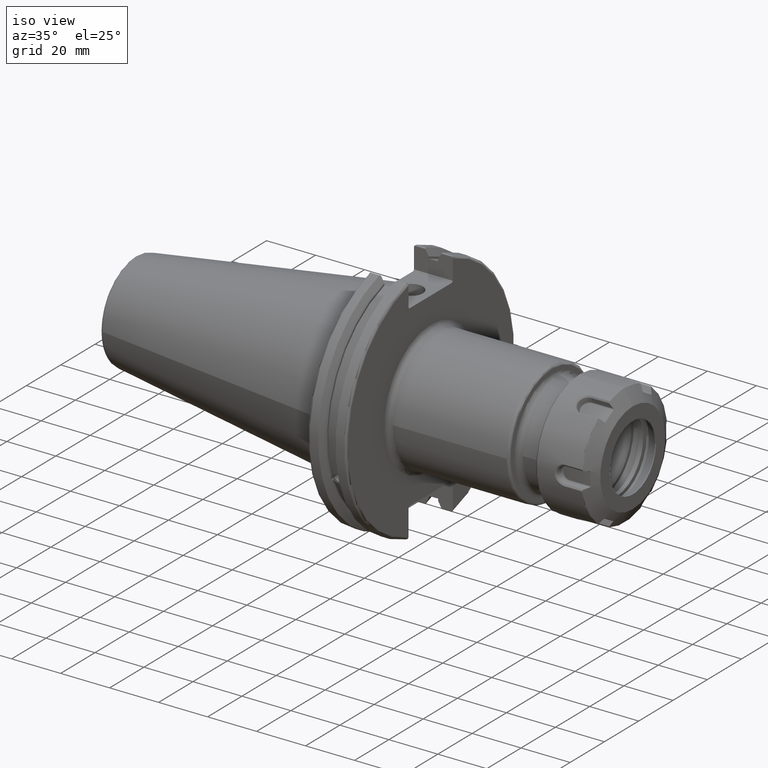
[diagram: clean part render]
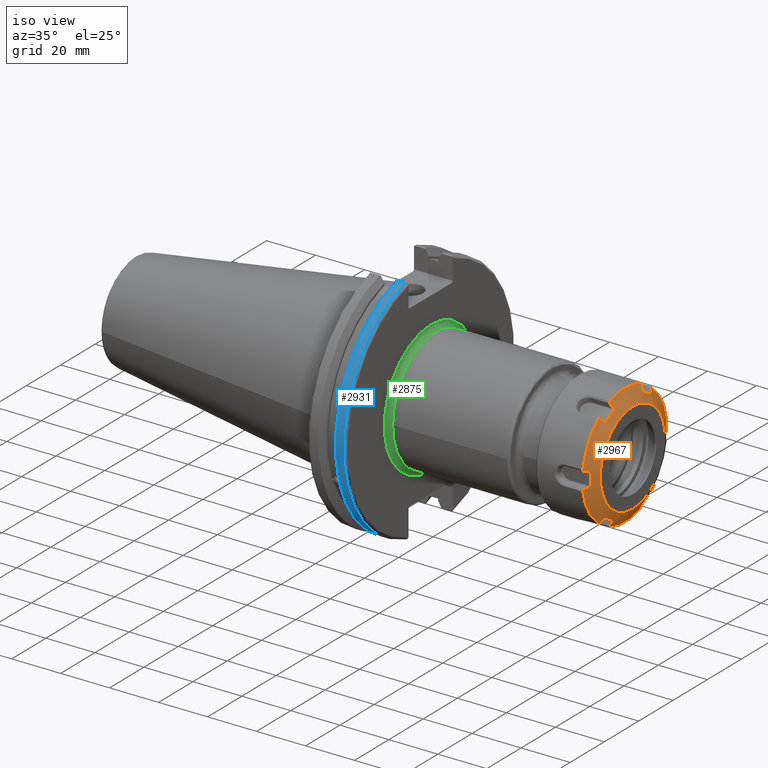
[diagram: same view with three faces highlighted in distinct colors, each labeled with its STEP entity id]
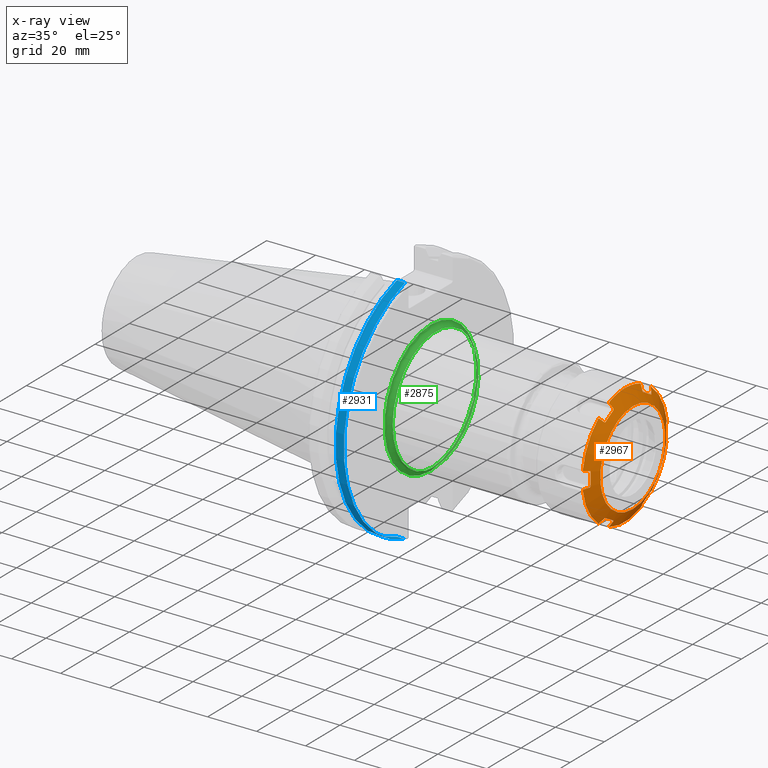
[diagram: x-ray of the same camera — body ghosted, the three highlighted faces saturated]
A machine part, iso view with three faces highlighted in distinct colors.
The next image is the same camera in x-ray (body ghosted, the three faces saturated) — at least one of them is partly hidden behind the body in this view.
Their STEP definitions:

[orange] entity #2967 — the highlighted conical surface has half-angle 60 deg.
#133=(
BOUNDED_CURVE()
B_SPLINE_CURVE(2,(#5238,#5239,#5240),.UNSPECIFIED.,.F.,.F.)
B_SPLINE_CURVE_WITH_KNOTS((3,3),(3.51476215686957,4.31734241493005),
 .UNSPECIFIED.)
CURVE()
GEOMETRIC_REPRESENTATION_ITEM()
RATIONAL_B_SPLINE_CURVE((1.47709269009182,1.48721867500282,1.47709269009183))
REPRESENTATION_ITEM('')
);
#134=(
BOUNDED_CURVE()
B_SPLINE_CURVE(2,(#5292,#5293,#5294),.UNSPECIFIED.,.F.,.F.)
B_SPLINE_CURVE_WITH_KNOTS((3,3),(3.51476215686976,4.31734241493044),
 .UNSPECIFIED.)
CURVE()
GEOMETRIC_REPRESENTATION_ITEM()
RATIONAL_B_SPLINE_CURVE((1.47709269009192,1.48721867500291,1.47709269009192))
REPRESENTATION_ITEM('')
);
#135=(
BOUNDED_CURVE()
B_SPLINE_CURVE(2,(#5346,#5347,#5348),.UNSPECIFIED.,.F.,.F.)
B_SPLINE_CURVE_WITH_KNOTS((3,3),(3.51476215686984,4.31734241493033),
 .UNSPECIFIED.)
CURVE()
GEOMETRIC_REPRESENTATION_ITEM()
RATIONAL_B_SPLINE_CURVE((1.47709269009183,1.48721867500282,1.47709269009182))
REPRESENTATION_ITEM('')
);
#136=(
BOUNDED_CURVE()
B_SPLINE_CURVE(2,(#5400,#5401,#5402),.UNSPECIFIED.,.F.,.F.)
B_SPLINE_CURVE_WITH_KNOTS((3,3),(3.51476215686957,4.31734241493005),
 .UNSPECIFIED.)
CURVE()
GEOMETRIC_REPRESENTATION_ITEM()
RATIONAL_B_SPLINE_CURVE((1.47709269009182,1.48721867500282,1.47709269009183))
REPRESENTATION_ITEM('')
);
#137=(
BOUNDED_CURVE()
B_SPLINE_CURVE(2,(#5454,#5455,#5456),.UNSPECIFIED.,.F.,.F.)
B_SPLINE_CURVE_WITH_KNOTS((3,3),(3.51476215686976,4.31734241493044),
 .UNSPECIFIED.)
CURVE()
GEOMETRIC_REPRESENTATION_ITEM()
RATIONAL_B_SPLINE_CURVE((1.47709269009192,1.48721867500291,1.47709269009192))
REPRESENTATION_ITEM('')
);
#138=(
BOUNDED_CURVE()
B_SPLINE_CURVE(2,(#5508,#5509,#5510),.UNSPECIFIED.,.F.,.F.)
B_SPLINE_CURVE_WITH_KNOTS((3,3),(3.51476215686984,4.31734241493033),
 .UNSPECIFIED.)
CURVE()
GEOMETRIC_REPRESENTATION_ITEM()
RATIONAL_B_SPLINE_CURVE((1.47709269009183,1.48721867500282,1.47709269009182))
REPRESENTATION_ITEM('')
);
#202=B_SPLINE_CURVE_WITH_KNOTS('',3,(#5214,#5215,#5216,#5217,#5218),
 .UNSPECIFIED.,.F.,.F.,(4,1,4),(0.,0.5,1.),.UNSPECIFIED.);
#203=B_SPLINE_CURVE_WITH_KNOTS('',3,(#5220,#5221,#5222,#5223,#5224,#5225),
 .UNSPECIFIED.,.F.,.F.,(4,1,1,4),(0.,0.3333333333333,0.6666666666667,1.),
 .UNSPECIFIED.);
#204=B_SPLINE_CURVE_WITH_KNOTS('',3,(#5227,#5228,#5229,#5230,#5231,#5232,
#5233,#5234,#5235,#5236),.UNSPECIFIED.,.F.,.F.,(4,2,2,2,4),(0.0021929011140548,
0.0216290017748505,0.0432580035497009,0.0616866380642235,0.0744888904768261),
 .UNSPECIFIED.);
#205=B_SPLINE_CURVE_WITH_KNOTS('',3,(#5242,#5243,#5244,#5245,#5246,#5247,
#5248,#5249,#5250,#5251),.UNSPECIFIED.,.F.,.F.,(4,2,2,2,4),(0.250635890627103,
0.263438143039404,0.281866777553927,0.303495779328777,0.322931879990271),
 .UNSPECIFIED.);
#206=B_SPLINE_CURVE_WITH_KNOTS('',3,(#5253,#5254,#5255,#5256,#5257,#5258),
 .UNSPECIFIED.,.F.,.F.,(4,1,1,4),(0.,0.3333333333333,0.6666666666667,1.),
 .UNSPECIFIED.);
#207=B_SPLINE_CURVE_WITH_KNOTS('',3,(#5260,#5261,#5262,#5263,#5264),
 .UNSPECIFIED.,.F.,.F.,(4,1,4),(0.,0.5,1.),.UNSPECIFIED.);
#208=B_SPLINE_CURVE_WITH_KNOTS('',3,(#5268,#5269,#5270,#5271,#5272),
 .UNSPECIFIED.,.F.,.F.,(4,1,4),(0.,0.5,1.),.UNSPECIFIED.);
#209=B_SPLINE_CURVE_WITH_KNOTS('',3,(#5274,#5275,#5276,#5277,#5278,#5279),
 .UNSPECIFIED.,.F.,.F.,(4,1,1,4),(0.,0.3333333333333,0.6666666666667,1.),
 .UNSPECIFIED.);
#210=B_SPLINE_CURVE_WITH_KNOTS('',3,(#5281,#5282,#5283,#5284,#5285,#5286,
#5287,#5288,#5289,#5290),.UNSPECIFIED.,.F.,.F.,(4,2,2,2,4),(0.00219290111341628,
0.0216290017748504,0.0432580035497007,0.0616866380642232,0.074488890476436),
 .UNSPECIFIED.);
#211=B_SPLINE_CURVE_WITH_KNOTS('',3,(#5296,#5297,#5298,#5299,#5300,#5301,
#5302,#5303,#5304,#5305),.UNSPECIFIED.,.F.,.F.,(4,2,2,2,4),(0.250635890627191,
0.263438143039404,0.281866777553927,0.303495779328777,0.32293187999021),
 .UNSPECIFIED.);
#212=B_SPLINE_CURVE_WITH_KNOTS('',3,(#5307,#5308,#5309,#5310,#5311,#5312),
 .UNSPECIFIED.,.F.,.F.,(4,1,1,4),(0.,0.3333333333333,0.6666666666667,1.),
 .UNSPECIFIED.);
#213=B_SPLINE_CURVE_WITH_KNOTS('',3,(#5314,#5315,#5316,#5317,#5318),
 .UNSPECIFIED.,.F.,.F.,(4,1,4),(0.,0.5,1.),.UNSPECIFIED.);
#214=B_SPLINE_CURVE_WITH_KNOTS('',3,(#5322,#5323,#5324,#5325,#5326),
 .UNSPECIFIED.,.F.,.F.,(4,1,4),(0.,0.5,1.),.UNSPECIFIED.);
#215=B_SPLINE_CURVE_WITH_KNOTS('',3,(#5328,#5329,#5330,#5331,#5332,#5333),
 .UNSPECIFIED.,.F.,.F.,(4,1,1,4),(0.,0.3333333333333,0.6666666666667,1.),
 .UNSPECIFIED.);
#216=B_SPLINE_CURVE_WITH_KNOTS('',3,(#5335,#5336,#5337,#5338,#5339,#5340,
#5341,#5342,#5343,#5344),.UNSPECIFIED.,.F.,.F.,(4,2,2,2,4),(0.00219290111335722,
0.0216290017748503,0.0432580035497006,0.0616866380642232,0.0744888904765242),
 .UNSPECIFIED.);
#217=B_SPLINE_CURVE_WITH_KNOTS('',3,(#5350,#5351,#5352,#5353,#5354,#5355,
#5356,#5357,#5358,#5359),.UNSPECIFIED.,.F.,.F.,(4,2,2,2,4),(0.250635890626801,
0.263438143039404,0.281866777553926,0.303495779328777,0.322931879989572),
 .UNSPECIFIED.);
#218=B_SPLINE_CURVE_WITH_KNOTS('',3,(#5361,#5362,#5363,#5364,#5365,#5366),
 .UNSPECIFIED.,.F.,.F.,(4,1,1,4),(0.,0.3333333333333,0.6666666666667,1.),
 .UNSPECIFIED.);
#219=B_SPLINE_CURVE_WITH_KNOTS('',3,(#5368,#5369,#5370,#5371,#5372),
 .UNSPECIFIED.,.F.,.F.,(4,1,4),(0.,0.5,1.),.UNSPECIFIED.);
#220=B_SPLINE_CURVE_WITH_KNOTS('',3,(#5376,#5377,#5378,#5379,#5380),
 .UNSPECIFIED.,.F.,.F.,(4,1,4),(0.,0.5,1.),.UNSPECIFIED.);
#221=B_SPLINE_CURVE_WITH_KNOTS('',3,(#5382,#5383,#5384,#5385,#5386,#5387),
 .UNSPECIFIED.,.F.,.F.,(4,1,1,4),(0.,0.3333333333333,0.6666666666667,1.),
 .UNSPECIFIED.);
#222=B_SPLINE_CURVE_WITH_KNOTS('',3,(#5389,#5390,#5391,#5392,#5393,#5394,
#5395,#5396,#5397,#5398),.UNSPECIFIED.,.F.,.F.,(4,2,2,2,4),(0.0021929011140548,
0.0216290017748505,0.0432580035497009,0.0616866380642235,0.0744888904768256),
 .UNSPECIFIED.);
#223=B_SPLINE_CURVE_WITH_KNOTS('',3,(#5404,#5405,#5406,#5407,#5408,#5409,
#5410,#5411,#5412,#5413),.UNSPECIFIED.,.F.,.F.,(4,2,2,2,4),(0.250635890627103,
0.263438143039404,0.281866777553927,0.303495779328777,0.322931879990271),
 .UNSPECIFIED.);
#224=B_SPLINE_CURVE_WITH_KNOTS('',3,(#5415,#5416,#5417,#5418,#5419,#5420),
 .UNSPECIFIED.,.F.,.F.,(4,1,1,4),(0.,0.3333333333333,0.6666666666667,1.),
 .UNSPECIFIED.);
#225=B_SPLINE_CURVE_WITH_KNOTS('',3,(#5422,#5423,#5424,#5425,#5426),
 .UNSPECIFIED.,.F.,.F.,(4,1,4),(0.,0.5,1.),.UNSPECIFIED.);
#226=B_SPLINE_CURVE_WITH_KNOTS('',3,(#5430,#5431,#5432,#5433,#5434),
 .UNSPECIFIED.,.F.,.F.,(4,1,4),(0.,0.5,1.),.UNSPECIFIED.);
#227=B_SPLINE_CURVE_WITH_KNOTS('',3,(#5436,#5437,#5438,#5439,#5440,#5441),
 .UNSPECIFIED.,.F.,.F.,(4,1,1,4),(0.,0.3333333333333,0.6666666666667,1.),
 .UNSPECIFIED.);
#228=B_SPLINE_CURVE_WITH_KNOTS('',3,(#5443,#5444,#5445,#5446,#5447,#5448,
#5449,#5450,#5451,#5452),.UNSPECIFIED.,.F.,.F.,(4,2,2,2,4),(0.00219290111341628,
0.0216290017748504,0.0432580035497007,0.0616866380642232,0.074488890476436),
 .UNSPECIFIED.);
#229=B_SPLINE_CURVE_WITH_KNOTS('',3,(#5458,#5459,#5460,#5461,#5462,#5463,
#5464,#5465,#5466,#5467),.UNSPECIFIED.,.F.,.F.,(4,2,2,2,4),(0.250635890627191,
0.263438143039404,0.281866777553927,0.303495779328777,0.32293187999021),
 .UNSPECIFIED.);
#230=B_SPLINE_CURVE_WITH_KNOTS('',3,(#5469,#5470,#5471,#5472,#5473,#5474),
 .UNSPECIFIED.,.F.,.F.,(4,1,1,4),(0.,0.3333333333333,0.6666666666667,1.),
 .UNSPECIFIED.);
#231=B_SPLINE_CURVE_WITH_KNOTS('',3,(#5476,#5477,#5478,#5479,#5480),
 .UNSPECIFIED.,.F.,.F.,(4,1,4),(0.,0.5,1.),.UNSPECIFIED.);
#232=B_SPLINE_CURVE_WITH_KNOTS('',3,(#5484,#5485,#5486,#5487,#5488),
 .UNSPECIFIED.,.F.,.F.,(4,1,4),(0.,0.5,1.),.UNSPECIFIED.);
#233=B_SPLINE_CURVE_WITH_KNOTS('',3,(#5490,#5491,#5492,#5493,#5494,#5495),
 .UNSPECIFIED.,.F.,.F.,(4,1,1,4),(0.,0.3333333333333,0.6666666666667,1.),
 .UNSPECIFIED.);
#234=B_SPLINE_CURVE_WITH_KNOTS('',3,(#5497,#5498,#5499,#5500,#5501,#5502,
#5503,#5504,#5505,#5506),.UNSPECIFIED.,.F.,.F.,(4,2,2,2,4),(0.00219290111335722,
0.0216290017748503,0.0432580035497006,0.0616866380642232,0.0744888904765241),
 .UNSPECIFIED.);
#235=B_SPLINE_CURVE_WITH_KNOTS('',3,(#5512,#5513,#5514,#5515,#5516,#5517,
#5518,#5519,#5520,#5521),.UNSPECIFIED.,.F.,.F.,(4,2,2,2,4),(0.250635890626801,
0.263438143039404,0.281866777553926,0.303495779328777,0.322931879989573),
 .UNSPECIFIED.);
#236=B_SPLINE_CURVE_WITH_KNOTS('',3,(#5523,#5524,#5525,#5526,#5527,#5528),
 .UNSPECIFIED.,.F.,.F.,(4,1,1,4),(0.,0.3333333333333,0.6666666666667,1.),
 .UNSPECIFIED.);
#237=B_SPLINE_CURVE_WITH_KNOTS('',3,(#5530,#5531,#5532,#5533,#5534),
 .UNSPECIFIED.,.F.,.F.,(4,1,4),(0.,0.5,1.),.UNSPECIFIED.);
#506=FACE_OUTER_BOUND('',#702,.T.);
#702=EDGE_LOOP('',(#2480,#2481,#2482,#2483,#2484,#2485,#2486,#2487,#2488,
#2489,#2490,#2491,#2492,#2493,#2494,#2495,#2496,#2497,#2498,#2499,#2500,
#2501,#2502,#2503,#2504,#2505,#2506,#2507,#2508,#2509,#2510,#2511,#2512,
#2513,#2514,#2515,#2516,#2517,#2518,#2519,#2520,#2521,#2522,#2523,#2524,
#2525,#2526,#2527,#2528,#2529,#2530,#2531));
#871=LINE('',#5536,#1046);
#1046=VECTOR('',#3941,21.87499999999);
#1218=CIRCLE('',#3312,19.);
#1219=CIRCLE('',#3314,24.75);
#1220=CIRCLE('',#3315,24.75);
#1221=CIRCLE('',#3316,24.75);
#1222=CIRCLE('',#3317,24.75);
#1223=CIRCLE('',#3318,24.75);
#1224=CIRCLE('',#3319,24.75);
#1225=CIRCLE('',#3320,24.75);
#1428=VERTEX_POINT('',#5207);
#1429=VERTEX_POINT('',#5210);
#1430=VERTEX_POINT('',#5211);
#1431=VERTEX_POINT('',#5213);
#1432=VERTEX_POINT('',#5219);
#1433=VERTEX_POINT('',#5226);
#1434=VERTEX_POINT('',#5237);
#1435=VERTEX_POINT('',#5241);
#1436=VERTEX_POINT('',#5252);
#1437=VERTEX_POINT('',#5259);
#1438=VERTEX_POINT('',#5265);
#1439=VERTEX_POINT('',#5267);
#1440=VERTEX_POINT('',#5273);
#1441=VERTEX_POINT('',#5280);
#1442=VERTEX_POINT('',#5291);
#1443=VERTEX_POINT('',#5295);
#1444=VERTEX_POINT('',#5306);
#1445=VERTEX_POINT('',#5313);
#1446=VERTEX_POINT('',#5319);
#1447=VERTEX_POINT('',#5321);
#1448=VERTEX_POINT('',#5327);
#1449=VERTEX_POINT('',#5334);
#1450=VERTEX_POINT('',#5345);
#1451=VERTEX_POINT('',#5349);
#1452=VERTEX_POINT('',#5360);
#1453=VERTEX_POINT('',#5367);
#1454=VERTEX_POINT('',#5373);
#1455=VERTEX_POINT('',#5375);
#1456=VERTEX_POINT('',#5381);
#1457=VERTEX_POINT('',#5388);
#1458=VERTEX_POINT('',#5399);
#1459=VERTEX_POINT('',#5403);
#1460=VERTEX_POINT('',#5414);
#1461=VERTEX_POINT('',#5421);
#1462=VERTEX_POINT('',#5427);
#1463=VERTEX_POINT('',#5429);
#1464=VERTEX_POINT('',#5435);
#1465=VERTEX_POINT('',#5442);
#1466=VERTEX_POINT('',#5453);
#1467=VERTEX_POINT('',#5457);
#1468=VERTEX_POINT('',#5468);
#1469=VERTEX_POINT('',#5475);
#1470=VERTEX_POINT('',#5481);
#1471=VERTEX_POINT('',#5483);
#1472=VERTEX_POINT('',#5489);
#1473=VERTEX_POINT('',#5496);
#1474=VERTEX_POINT('',#5507);
#1475=VERTEX_POINT('',#5511);
#1476=VERTEX_POINT('',#5522);
#1477=VERTEX_POINT('',#5529);
#1793=EDGE_CURVE('',#1428,#1428,#1218,.T.);
#1794=EDGE_CURVE('',#1429,#1430,#1219,.T.);
#1795=EDGE_CURVE('',#1429,#1431,#202,.T.);
#1796=EDGE_CURVE('',#1432,#1431,#203,.T.);
#1797=EDGE_CURVE('',#1432,#1433,#204,.T.);
#1798=EDGE_CURVE('',#1434,#1433,#133,.T.);
#1799=EDGE_CURVE('',#1434,#1435,#205,.T.);
#1800=EDGE_CURVE('',#1436,#1435,#206,.T.);
#1801=EDGE_CURVE('',#1436,#1437,#207,.T.);
#1802=EDGE_CURVE('',#1437,#1438,#1220,.T.);
#1803=EDGE_CURVE('',#1438,#1439,#208,.T.);
#1804=EDGE_CURVE('',#1440,#1439,#209,.T.);
#1805=EDGE_CURVE('',#1440,#1441,#210,.T.);
#1806=EDGE_CURVE('',#1442,#1441,#134,.T.);
#1807=EDGE_CURVE('',#1442,#1443,#211,.T.);
#1808=EDGE_CURVE('',#1444,#1443,#212,.T.);
#1809=EDGE_CURVE('',#1444,#1445,#213,.T.);
#1810=EDGE_CURVE('',#1445,#1446,#1221,.T.);
#1811=EDGE_CURVE('',#1446,#1447,#214,.T.);
#1812=EDGE_CURVE('',#1448,#1447,#215,.T.);
#1813=EDGE_CURVE('',#1448,#1449,#216,.T.);
#1814=EDGE_CURVE('',#1450,#1449,#135,.T.);
#1815=EDGE_CURVE('',#1450,#1451,#217,.T.);
#1816=EDGE_CURVE('',#1452,#1451,#218,.T.);
#1817=EDGE_CURVE('',#1452,#1453,#219,.T.);
#1818=EDGE_CURVE('',#1454,#1453,#1222,.T.);
#1819=EDGE_CURVE('',#1454,#1455,#220,.T.);
#1820=EDGE_CURVE('',#1456,#1455,#221,.T.);
#1821=EDGE_CURVE('',#1456,#1457,#222,.T.);
#1822=EDGE_CURVE('',#1458,#1457,#136,.T.);
#1823=EDGE_CURVE('',#1458,#1459,#223,.T.);
#1824=EDGE_CURVE('',#1460,#1459,#224,.T.);
#1825=EDGE_CURVE('',#1460,#1461,#225,.T.);
#1826=EDGE_CURVE('',#1461,#1462,#1223,.T.);
#1827=EDGE_CURVE('',#1462,#1463,#226,.T.);
#1828=EDGE_CURVE('',#1464,#1463,#227,.T.);
#1829=EDGE_CURVE('',#1464,#1465,#228,.T.);
#1830=EDGE_CURVE('',#1466,#1465,#137,.T.);
#1831=EDGE_CURVE('',#1466,#1467,#229,.T.);
#1832=EDGE_CURVE('',#1468,#1467,#230,.T.);
#1833=EDGE_CURVE('',#1468,#1469,#231,.T.);
#1834=EDGE_CURVE('',#1469,#1470,#1224,.T.);
#1835=EDGE_CURVE('',#1470,#1471,#232,.T.);
#1836=EDGE_CURVE('',#1472,#1471,#233,.T.);
#1837=EDGE_CURVE('',#1472,#1473,#234,.T.);
#1838=EDGE_CURVE('',#1474,#1473,#138,.T.);
#1839=EDGE_CURVE('',#1474,#1475,#235,.T.);
#1840=EDGE_CURVE('',#1476,#1475,#236,.T.);
#1841=EDGE_CURVE('',#1476,#1477,#237,.T.);
#1842=EDGE_CURVE('',#1430,#1477,#1225,.T.);
#1843=EDGE_CURVE('',#1430,#1428,#871,.T.);
#2480=ORIENTED_EDGE('',*,*,#1794,.F.);
#2481=ORIENTED_EDGE('',*,*,#1795,.T.);
#2482=ORIENTED_EDGE('',*,*,#1796,.F.);
#2483=ORIENTED_EDGE('',*,*,#1797,.T.);
#2484=ORIENTED_EDGE('',*,*,#1798,.F.);
#2485=ORIENTED_EDGE('',*,*,#1799,.T.);
#2486=ORIENTED_EDGE('',*,*,#1800,.F.);
#2487=ORIENTED_EDGE('',*,*,#1801,.T.);
#2488=ORIENTED_EDGE('',*,*,#1802,.T.);
#2489=ORIENTED_EDGE('',*,*,#1803,.T.);
#2490=ORIENTED_EDGE('',*,*,#1804,.F.);
#2491=ORIENTED_EDGE('',*,*,#1805,.T.);
#2492=ORIENTED_EDGE('',*,*,#1806,.F.);
#2493=ORIENTED_EDGE('',*,*,#1807,.T.);
#2494=ORIENTED_EDGE('',*,*,#1808,.F.);
#2495=ORIENTED_EDGE('',*,*,#1809,.T.);
#2496=ORIENTED_EDGE('',*,*,#1810,.T.);
#2497=ORIENTED_EDGE('',*,*,#1811,.T.);
#2498=ORIENTED_EDGE('',*,*,#1812,.F.);
#2499=ORIENTED_EDGE('',*,*,#1813,.T.);
#2500=ORIENTED_EDGE('',*,*,#1814,.F.);
#2501=ORIENTED_EDGE('',*,*,#1815,.T.);
#2502=ORIENTED_EDGE('',*,*,#1816,.F.);
#2503=ORIENTED_EDGE('',*,*,#1817,.T.);
#2504=ORIENTED_EDGE('',*,*,#1818,.F.);
#2505=ORIENTED_EDGE('',*,*,#1819,.T.);
#2506=ORIENTED_EDGE('',*,*,#1820,.F.);
#2507=ORIENTED_EDGE('',*,*,#1821,.T.);
#2508=ORIENTED_EDGE('',*,*,#1822,.F.);
#2509=ORIENTED_EDGE('',*,*,#1823,.T.);
#2510=ORIENTED_EDGE('',*,*,#1824,.F.);
#2511=ORIENTED_EDGE('',*,*,#1825,.T.);
#2512=ORIENTED_EDGE('',*,*,#1826,.T.);
#2513=ORIENTED_EDGE('',*,*,#1827,.T.);
#2514=ORIENTED_EDGE('',*,*,#1828,.F.);
#2515=ORIENTED_EDGE('',*,*,#1829,.T.);
#2516=ORIENTED_EDGE('',*,*,#1830,.F.);
#2517=ORIENTED_EDGE('',*,*,#1831,.T.);
#2518=ORIENTED_EDGE('',*,*,#1832,.F.);
#2519=ORIENTED_EDGE('',*,*,#1833,.T.);
#2520=ORIENTED_EDGE('',*,*,#1834,.T.);
#2521=ORIENTED_EDGE('',*,*,#1835,.T.);
#2522=ORIENTED_EDGE('',*,*,#1836,.F.);
#2523=ORIENTED_EDGE('',*,*,#1837,.T.);
#2524=ORIENTED_EDGE('',*,*,#1838,.F.);
#2525=ORIENTED_EDGE('',*,*,#1839,.T.);
#2526=ORIENTED_EDGE('',*,*,#1840,.F.);
#2527=ORIENTED_EDGE('',*,*,#1841,.T.);
#2528=ORIENTED_EDGE('',*,*,#1842,.F.);
#2529=ORIENTED_EDGE('',*,*,#1843,.T.);
#2530=ORIENTED_EDGE('',*,*,#1793,.F.);
#2531=ORIENTED_EDGE('',*,*,#1843,.F.);
#2858=CONICAL_SURFACE('',#3313,21.87499999999,1.0471975511966);
#2967=ADVANCED_FACE('',(#506),#2858,.T.);
#3312=AXIS2_PLACEMENT_3D('',#5208,#3923,#3924);
#3313=AXIS2_PLACEMENT_3D('',#5209,#3925,#3926);
#3314=AXIS2_PLACEMENT_3D('',#5212,#3927,#3928);
#3315=AXIS2_PLACEMENT_3D('',#5266,#3929,#3930);
#3316=AXIS2_PLACEMENT_3D('',#5320,#3931,#3932);
#3317=AXIS2_PLACEMENT_3D('',#5374,#3933,#3934);
#3318=AXIS2_PLACEMENT_3D('',#5428,#3935,#3936);
#3319=AXIS2_PLACEMENT_3D('',#5482,#3937,#3938);
#3320=AXIS2_PLACEMENT_3D('',#5535,#3939,#3940);
#3923=DIRECTION('center_axis',(1.,0.,0.));
#3924=DIRECTION('ref_axis',(0.,0.,1.));
#3925=DIRECTION('center_axis',(-1.,0.,0.));
#3926=DIRECTION('ref_axis',(0.,0.,-1.));
#3927=DIRECTION('center_axis',(-1.,0.,0.));
#3928=DIRECTION('ref_axis',(0.,-0.365626291910614,0.930761738934135));
#3929=DIRECTION('center_axis',(1.,0.,0.));
#3930=DIRECTION('ref_axis',(0.,-0.623250164832195,0.782022526553194));
#3931=DIRECTION('center_axis',(1.,0.,0.));
#3932=DIRECTION('ref_axis',(0.,-0.988876456742842,-0.148739212381006));
#3933=DIRECTION('center_axis',(-1.,0.,0.));
#3934=DIRECTION('ref_axis',(0.,0.365626291910614,-0.930761738934135));
#3935=DIRECTION('center_axis',(1.,0.,0.));
#3936=DIRECTION('ref_axis',(0.,0.623250164832195,-0.782022526553194));
#3937=DIRECTION('center_axis',(1.,0.,0.));
#3938=DIRECTION('ref_axis',(0.,0.988876456742842,0.148739212381006));
#3939=DIRECTION('center_axis',(-1.,0.,0.));
#3940=DIRECTION('ref_axis',(0.,-0.365626291910614,0.930761738934135));
#3941=DIRECTION('',(0.5,-1.06057523872491E-16,-0.866025403784439));
#5207=CARTESIAN_POINT('',(11.25,0.,19.));
#5208=CARTESIAN_POINT('Origin',(11.25,0.,0.));
#5209=CARTESIAN_POINT('Origin',(9.590117976086,0.,0.));
#5210=CARTESIAN_POINT('',(7.93023595216,-9.049250724788,23.03635303862));
#5211=CARTESIAN_POINT('',(7.9302359521581,3.03100082789011E-15,24.7500000000034));
#5212=CARTESIAN_POINT('Origin',(7.93023595216,0.,0.));
#5213=CARTESIAN_POINT('',(8.067319186688,-9.192179591027,22.72376885589));
#5214=CARTESIAN_POINT('Ctrl Pts',(7.93023595216,-9.049250724788,23.03635303862));
#5215=CARTESIAN_POINT('Ctrl Pts',(7.953316779699,-9.073189986037,22.98399808325));
#5216=CARTESIAN_POINT('Ctrl Pts',(7.999244791068,-9.12095072866,22.87954575608));
#5217=CARTESIAN_POINT('Ctrl Pts',(8.04470557675,-9.168475901167,22.77560861869));
#5218=CARTESIAN_POINT('Ctrl Pts',(8.067319186688,-9.192179591027,22.72376885589));
#5219=CARTESIAN_POINT('',(9.158352391105,-8.545418276707,20.94680674902));
#5220=CARTESIAN_POINT('Ctrl Pts',(9.158352391105,-8.545418276707,20.94680674902));
#5221=CARTESIAN_POINT('Ctrl Pts',(9.038440212986,-8.616505886774,21.14211835248));
#5222=CARTESIAN_POINT('Ctrl Pts',(8.797739699423,-8.759197649026,21.53416074721));
#5223=CARTESIAN_POINT('Ctrl Pts',(8.434050555279,-8.974791288436,22.12649940327));
#5224=CARTESIAN_POINT('Ctrl Pts',(8.189853664668,-9.119545298481,22.52420777724));
#5225=CARTESIAN_POINT('Ctrl Pts',(8.067319186688,-9.192179591027,22.72376885589));
#5226=CARTESIAN_POINT('',(9.430874573907,-8.7652645871,20.34278397546));
#5227=CARTESIAN_POINT('Ctrl Pts',(9.15835239110429,-8.54541827670599,20.9468067490199));
#5228=CARTESIAN_POINT('Ctrl Pts',(9.19119712671738,-8.52594691195692,20.8933096140449));
#5229=CARTESIAN_POINT('Ctrl Pts',(9.22581604899738,-8.51482688393214,20.8330947998305));
#5230=CARTESIAN_POINT('Ctrl Pts',(9.29445479801047,-8.5157805992649,20.7042164191707));
#5231=CARTESIAN_POINT('Ctrl Pts',(9.3279557682139,-8.53075238997886,20.6353180550556));
#5232=CARTESIAN_POINT('Ctrl Pts',(9.37736091771003,-8.58080945742881,20.5218170940594));
#5233=CARTESIAN_POINT('Ctrl Pts',(9.39793108518539,-8.61569316863444,20.4685883608895));
#5234=CARTESIAN_POINT('Ctrl Pts',(9.42143915916752,-8.69153237608418,20.3922026331622));
#5235=CARTESIAN_POINT('Ctrl Pts',(9.42792730040714,-8.72731509387336,20.3646941255974));
#5236=CARTESIAN_POINT('Ctrl Pts',(9.43087457390542,-8.76526458710346,20.3427839754658));
#5237=CARTESIAN_POINT('',(9.430874573907,-13.2347354129,17.76233379105));
#5238=CARTESIAN_POINT('Ctrl Pts',(9.43087457390804,-13.2347354128814,17.7623337910653));
#5239=CARTESIAN_POINT('Ctrl Pts',(9.60443094839101,-11.0000000000022,19.0525588832588));
#5240=CARTESIAN_POINT('Ctrl Pts',(9.43087457390816,-8.76526458712295,20.3427839754522));
#5241=CARTESIAN_POINT('',(9.158352391105,-13.86775763446,17.8739526881));
#5242=CARTESIAN_POINT('Ctrl Pts',(9.43087457390979,-13.2347354128992,17.7623337910482));
#5243=CARTESIAN_POINT('Ctrl Pts',(9.42792730041141,-13.2726849061282,17.7404236409168));
#5244=CARTESIAN_POINT('Ctrl Pts',(9.42143915917186,-13.3143993313932,17.7231891520779));
#5245=CARTESIAN_POINT('Ctrl Pts',(9.39793108518996,-13.4184709158154,17.6957033356874));
#5246=CARTESIAN_POINT('Ctrl Pts',(9.37736091771461,-13.4820102065547,17.69210752219));
#5247=CARTESIAN_POINT('Ctrl Pts',(9.32795576821848,-13.6053334558563,17.7055073106375));
#5248=CARTESIAN_POINT('Ctrl Pts',(9.29445479801504,-13.6724870848161,17.7269905415966));
#5249=CARTESIAN_POINT('Ctrl Pts',(9.22581604900079,-13.7845758941345,17.7906037902214));
#5250=CARTESIAN_POINT('Ctrl Pts',(9.19119712671946,-13.8311634389173,17.8303414240907));
#5251=CARTESIAN_POINT('Ctrl Pts',(9.15835239110532,-13.8677576344614,17.873952688099));
#5252=CARTESIAN_POINT('',(8.067319186688,-15.08327130341,19.32254546992));
#5253=CARTESIAN_POINT('Ctrl Pts',(8.067319186688,-15.08327130341,19.32254546992));
#5254=CARTESIAN_POINT('Ctrl Pts',(8.189820037069,-14.94680094833,19.15990643397));
#5255=CARTESIAN_POINT('Ctrl Pts',(8.433972092865,-14.67480234824,18.83575112514));
#5256=CARTESIAN_POINT('Ctrl Pts',(8.797661267953,-14.26961881374,18.35287219224));
#5257=CARTESIAN_POINT('Ctrl Pts',(9.038406600502,-14.00139608927,18.03321679673));
#5258=CARTESIAN_POINT('Ctrl Pts',(9.158352391105,-13.86775763446,17.8739526881));
#5259=CARTESIAN_POINT('',(7.93023595216,-15.4254415796,19.35505753219));
#5260=CARTESIAN_POINT('Ctrl Pts',(8.067319186688,-15.08327130341,19.32254546992));
#5261=CARTESIAN_POINT('Ctrl Pts',(8.044725340155,-15.13996810573,19.32793264145));
#5262=CARTESIAN_POINT('Ctrl Pts',(7.99928450041,-15.25369337115,19.33873849797));
#5263=CARTESIAN_POINT('Ctrl Pts',(7.95333672401,-15.36808170532,19.34960735743));
#5264=CARTESIAN_POINT('Ctrl Pts',(7.93023595216,-15.4254415796,19.35505753219));
#5265=CARTESIAN_POINT('',(7.93023595216,-24.47469230439,3.681295506429));
#5266=CARTESIAN_POINT('Origin',(7.93023595216,0.,0.));
#5267=CARTESIAN_POINT('',(8.067319186688,-24.27545089444,3.401223385967));
#5268=CARTESIAN_POINT('Ctrl Pts',(7.93023595216,-24.47469230439,3.681295506429));
#5269=CARTESIAN_POINT('Ctrl Pts',(7.953305715115,-24.44133721122,3.634408508021));
#5270=CARTESIAN_POINT('Ctrl Pts',(7.999222761311,-24.37477523445,3.540842848246));
#5271=CARTESIAN_POINT('Ctrl Pts',(8.044694612529,-24.30850962179,3.447693785227));
#5272=CARTESIAN_POINT('Ctrl Pts',(8.067319186688,-24.27545089444,3.401223385967));
#5273=CARTESIAN_POINT('',(9.158352391105,-22.41317591117,3.072854060917));
#5274=CARTESIAN_POINT('Ctrl Pts',(9.158352391105,-22.41317591117,3.072854060917));
#5275=CARTESIAN_POINT('Ctrl Pts',(9.038441052253,-22.61786309384,3.108945933827));
#5276=CARTESIAN_POINT('Ctrl Pts',(8.797741657643,-23.02872573823,3.1813921034));
#5277=CARTESIAN_POINT('Ctrl Pts',(8.434052503311,-23.64950289927,3.290851865898));
#5278=CARTESIAN_POINT('Ctrl Pts',(8.189854499506,-24.06630735955,3.364345737925));
#5279=CARTESIAN_POINT('Ctrl Pts',(8.067319186688,-24.27545089444,3.401223385967));
#5280=CARTESIAN_POINT('',(9.430874573907,-22.,2.580450184411));
#5281=CARTESIAN_POINT('Ctrl Pts',(9.15835239110354,-22.413175911169,3.07285406091755));
#5282=CARTESIAN_POINT('Ctrl Pts',(9.19119712671759,-22.3571103508747,3.06296818994941));
#5283=CARTESIAN_POINT('Ctrl Pts',(9.2258160489988,-22.2994027780665,3.04249100960221));
#5284=CARTESIAN_POINT('Ctrl Pts',(9.29445479801296,-22.1882676840811,2.97722587756512));
#5285=CARTESIAN_POINT('Ctrl Pts',(9.3279557682164,-22.1360858458352,2.92981074440912));
#5286=CARTESIAN_POINT('Ctrl Pts',(9.37736091771253,-22.0628196639836,2.82970957186047));
#5287=CARTESIAN_POINT('Ctrl Pts',(9.39793108518788,-22.0341640844499,2.77288502519313));
#5288=CARTESIAN_POINT('Ctrl Pts',(9.42143915916971,-22.0059317074768,2.66901348107646));
#5289=CARTESIAN_POINT('Ctrl Pts',(9.42792730040924,-22.,2.62427048467359));
#5290=CARTESIAN_POINT('Ctrl Pts',(9.43087457390764,-22.,2.58045018441104));
#5291=CARTESIAN_POINT('',(9.430874573907,-22.,-2.580450184411));
#5292=CARTESIAN_POINT('Ctrl Pts',(9.43087457390924,-22.,-2.58045018438732));
#5293=CARTESIAN_POINT('Ctrl Pts',(9.60443094839223,-22.,-7.54951656745106E-15));
#5294=CARTESIAN_POINT('Ctrl Pts',(9.43087457390924,-22.,2.58045018438731));
#5295=CARTESIAN_POINT('',(9.158352391105,-22.41317591117,-3.072854060917));
#5296=CARTESIAN_POINT('Ctrl Pts',(9.43087457390764,-22.,-2.58045018441104));
#5297=CARTESIAN_POINT('Ctrl Pts',(9.42792730040924,-22.,-2.62427048467359));
#5298=CARTESIAN_POINT('Ctrl Pts',(9.42143915916971,-22.0059317074768,-2.66901348107646));
#5299=CARTESIAN_POINT('Ctrl Pts',(9.39793108518788,-22.0341640844499,-2.77288502519313));
#5300=CARTESIAN_POINT('Ctrl Pts',(9.37736091771252,-22.0628196639836,-2.82970957186047));
#5301=CARTESIAN_POINT('Ctrl Pts',(9.32795576821639,-22.1360858458352,-2.92981074440912));
#5302=CARTESIAN_POINT('Ctrl Pts',(9.29445479801296,-22.1882676840811,-2.97722587756512));
#5303=CARTESIAN_POINT('Ctrl Pts',(9.22581604899881,-22.2994027780665,-3.04249100960221));
#5304=CARTESIAN_POINT('Ctrl Pts',(9.1911971267176,-22.3571103508747,-3.06296818994941));
#5305=CARTESIAN_POINT('Ctrl Pts',(9.15835239110354,-22.413175911169,-3.07285406091755));
#5306=CARTESIAN_POINT('',(8.067319186688,-24.27545089444,-3.401223385967));
#5307=CARTESIAN_POINT('Ctrl Pts',(8.067319186688,-24.27545089444,-3.401223385967));
#5308=CARTESIAN_POINT('Ctrl Pts',(8.189820862073,-24.06636477199,-3.364355861288));
#5309=CARTESIAN_POINT('Ctrl Pts',(8.433974017959,-23.649636862,-3.290875487143));
#5310=CARTESIAN_POINT('Ctrl Pts',(8.797663203698,-23.02885965358,-3.181415716288));
#5311=CARTESIAN_POINT('Ctrl Pts',(9.03840743014,-22.61792048637,-3.10895605368));
#5312=CARTESIAN_POINT('Ctrl Pts',(9.158352391105,-22.41317591117,-3.072854060917));
#5313=CARTESIAN_POINT('',(7.93023595216,-24.47469230439,-3.681295506429));
#5314=CARTESIAN_POINT('Ctrl Pts',(8.067319186688,-24.27545089444,-3.401223385967));
#5315=CARTESIAN_POINT('Ctrl Pts',(8.044749094101,-24.30843001404,-3.447581881225));
#5316=CARTESIAN_POINT('Ctrl Pts',(7.999332227532,-24.37461613434,-3.540619202443));
#5317=CARTESIAN_POINT('Ctrl Pts',(7.95336069539,-24.44125771876,-3.634296766081));
#5318=CARTESIAN_POINT('Ctrl Pts',(7.93023595216,-24.47469230439,-3.681295506429));
#5319=CARTESIAN_POINT('',(7.93023595216,-15.4254415796,-19.35505753219));
#5320=CARTESIAN_POINT('Origin',(7.93023595216,0.,0.));
#5321=CARTESIAN_POINT('',(8.067319186688,-15.08327130341,-19.32254546992));
#5322=CARTESIAN_POINT('Ctrl Pts',(7.93023595216,-15.4254415796,-19.35505753219));
#5323=CARTESIAN_POINT('Ctrl Pts',(7.953379780775,-15.36797479415,-19.34959719903));
#5324=CARTESIAN_POINT('Ctrl Pts',(7.999370226496,-15.25347939375,-19.33871816643));
#5325=CARTESIAN_POINT('Ctrl Pts',(8.04476800637,-15.13986103951,-19.32792246831));
#5326=CARTESIAN_POINT('Ctrl Pts',(8.067319186688,-15.08327130341,-19.32254546992));
#5327=CARTESIAN_POINT('',(9.158352391105,-13.86775763446,-17.8739526881));
#5328=CARTESIAN_POINT('Ctrl Pts',(9.158352391105,-13.86775763446,-17.8739526881));
#5329=CARTESIAN_POINT('Ctrl Pts',(9.038440632719,-14.00135817203,-18.03317160872));
#5330=CARTESIAN_POINT('Ctrl Pts',(8.797740678764,-14.26953034065,-18.3527667541));
#5331=CARTESIAN_POINT('Ctrl Pts',(8.434051529518,-14.67471385047,-18.83564565759));
#5332=CARTESIAN_POINT('Ctrl Pts',(8.189854082183,-14.94676302084,-19.15986123375));
#5333=CARTESIAN_POINT('Ctrl Pts',(8.067319186688,-15.08327130341,-19.32254546992));
#5334=CARTESIAN_POINT('',(9.430874573907,-13.2347354129,-17.76233379105));
#5335=CARTESIAN_POINT('Ctrl Pts',(9.15835239110532,-13.8677576344614,-17.873952688099));
#5336=CARTESIAN_POINT('Ctrl Pts',(9.19119712671947,-13.8311634389173,-17.8303414240907));
#5337=CARTESIAN_POINT('Ctrl Pts',(9.22581604900079,-13.7845758941345,-17.7906037902214));
#5338=CARTESIAN_POINT('Ctrl Pts',(9.29445479801504,-13.6724870848161,-17.7269905415966));
#5339=CARTESIAN_POINT('Ctrl Pts',(9.32795576821848,-13.6053334558563,-17.7055073106375));
#5340=CARTESIAN_POINT('Ctrl Pts',(9.37736091771461,-13.4820102065547,-17.69210752219));
#5341=CARTESIAN_POINT('Ctrl Pts',(9.39793108518996,-13.4184709158154,-17.6957033356874));
#5342=CARTESIAN_POINT('Ctrl Pts',(9.42143915917186,-13.3143993313932,-17.7231891520779));
#5343=CARTESIAN_POINT('Ctrl Pts',(9.42792730041141,-13.2726849061282,-17.7404236409168));
#5344=CARTESIAN_POINT('Ctrl Pts',(9.43087457390979,-13.2347354128992,-17.7623337910482));
#5345=CARTESIAN_POINT('',(9.430874573907,-8.7652645871,-20.34278397546));
#5346=CARTESIAN_POINT('Ctrl Pts',(9.43087457390816,-8.76526458712292,-20.3427839754522));
#5347=CARTESIAN_POINT('Ctrl Pts',(9.60443094839101,-11.0000000000022,-19.0525588832588));
#5348=CARTESIAN_POINT('Ctrl Pts',(9.43087457390804,-13.2347354128814,-17.7623337910653));
#5349=CARTESIAN_POINT('',(9.158352391105,-8.545418276707,-20.94680674902));
#5350=CARTESIAN_POINT('Ctrl Pts',(9.43087457390542,-8.76526458710346,-20.3427839754658));
#5351=CARTESIAN_POINT('Ctrl Pts',(9.42792730040714,-8.72731509387336,-20.3646941255974));
#5352=CARTESIAN_POINT('Ctrl Pts',(9.42143915916752,-8.69153237608418,-20.3922026331622));
#5353=CARTESIAN_POINT('Ctrl Pts',(9.39793108518539,-8.61569316863444,-20.4685883608895));
#5354=CARTESIAN_POINT('Ctrl Pts',(9.37736091771003,-8.58080945742881,-20.5218170940594));
#5355=CARTESIAN_POINT('Ctrl Pts',(9.3279557682139,-8.53075238997886,-20.6353180550556));
#5356=CARTESIAN_POINT('Ctrl Pts',(9.29445479801047,-8.5157805992649,-20.7042164191707));
#5357=CARTESIAN_POINT('Ctrl Pts',(9.22581604899738,-8.51482688393214,-20.8330947998305));
#5358=CARTESIAN_POINT('Ctrl Pts',(9.19119712671738,-8.52594691195692,-20.8933096140449));
#5359=CARTESIAN_POINT('Ctrl Pts',(9.15835239110429,-8.54541827670599,-20.9468067490199));
#5360=CARTESIAN_POINT('',(8.067319186688,-9.192179591027,-22.72376885589));
#5361=CARTESIAN_POINT('Ctrl Pts',(8.067319186688,-9.192179591027,-22.72376885589));
#5362=CARTESIAN_POINT('Ctrl Pts',(8.189820449666,-9.11956498721,-22.52426187158));
#5363=CARTESIAN_POINT('Ctrl Pts',(8.433973055635,-8.974837228894,-22.12662562364));
#5364=CARTESIAN_POINT('Ctrl Pts',(8.797662236057,-8.759243570111,-21.53428691436));
#5365=CARTESIAN_POINT('Ctrl Pts',(9.03840701542,-8.616525567308,-21.1421724243));
#5366=CARTESIAN_POINT('Ctrl Pts',(9.158352391105,-8.545418276707,-20.94680674902));
#5367=CARTESIAN_POINT('',(7.93023595216,-9.049250724788,-23.03635303862));
#5368=CARTESIAN_POINT('Ctrl Pts',(8.067319186688,-9.192179591027,-22.72376885589));
#5369=CARTESIAN_POINT('Ctrl Pts',(8.044746800182,-9.168519111758,-22.7755141175));
#5370=CARTESIAN_POINT('Ctrl Pts',(7.999327618532,-9.121037087219,-22.87935689066));
#5371=CARTESIAN_POINT('Ctrl Pts',(7.953358380474,-9.073233134049,-22.98390371893));
#5372=CARTESIAN_POINT('Ctrl Pts',(7.93023595216,-9.049250724788,-23.03635303862));
#5373=CARTESIAN_POINT('',(7.93023595216,9.049250724788,-23.03635303862));
#5374=CARTESIAN_POINT('Origin',(7.93023595216,0.,0.));
#5375=CARTESIAN_POINT('',(8.067319186688,9.192179591027,-22.72376885589));
#5376=CARTESIAN_POINT('Ctrl Pts',(7.93023595216,9.049250724788,-23.03635303862));
#5377=CARTESIAN_POINT('Ctrl Pts',(7.953364010072,9.073238973026,-22.98389094913));
#5378=CARTESIAN_POINT('Ctrl Pts',(7.999338827066,9.121048773642,-22.87933133256));
#5379=CARTESIAN_POINT('Ctrl Pts',(8.044752378717,9.168524959203,-22.77550132919));
#5380=CARTESIAN_POINT('Ctrl Pts',(8.067319186688,9.192179591027,-22.72376885589));
#5381=CARTESIAN_POINT('',(9.158352391105,8.545418276707,-20.94680674902));
#5382=CARTESIAN_POINT('Ctrl Pts',(9.158352391105,8.545418276707,-20.94680674902));
#5383=CARTESIAN_POINT('Ctrl Pts',(9.038440632719,8.616505637944,-21.14211766883));
#5384=CARTESIAN_POINT('Ctrl Pts',(8.797740678764,8.759197068462,-21.53415915213));
#5385=CARTESIAN_POINT('Ctrl Pts',(8.434051529518,8.974790710924,-22.12649781657));
#5386=CARTESIAN_POINT('Ctrl Pts',(8.189854082183,9.119545050993,-22.52420709727));
#5387=CARTESIAN_POINT('Ctrl Pts',(8.067319186688,9.192179591027,-22.72376885589));
#5388=CARTESIAN_POINT('',(9.430874573907,8.7652645871,-20.34278397546));
#5389=CARTESIAN_POINT('Ctrl Pts',(9.15835239110429,8.54541827670599,-20.9468067490199));
#5390=CARTESIAN_POINT('Ctrl Pts',(9.19119712671738,8.52594691195692,-20.8933096140449));
#5391=CARTESIAN_POINT('Ctrl Pts',(9.22581604899738,8.51482688393214,-20.8330947998305));
#5392=CARTESIAN_POINT('Ctrl Pts',(9.29445479801047,8.5157805992649,-20.7042164191707));
#5393=CARTESIAN_POINT('Ctrl Pts',(9.3279557682139,8.53075238997886,-20.6353180550556));
#5394=CARTESIAN_POINT('Ctrl Pts',(9.37736091771003,8.58080945742881,-20.5218170940594));
#5395=CARTESIAN_POINT('Ctrl Pts',(9.39793108518538,8.61569316863444,-20.4685883608895));
#5396=CARTESIAN_POINT('Ctrl Pts',(9.42143915916751,8.69153237608418,-20.3922026331622));
#5397=CARTESIAN_POINT('Ctrl Pts',(9.42792730040714,8.72731509387336,-20.3646941255974));
#5398=CARTESIAN_POINT('Ctrl Pts',(9.43087457390542,8.76526458710346,-20.3427839754658));
#5399=CARTESIAN_POINT('',(9.430874573907,13.2347354129,-17.76233379105));
#5400=CARTESIAN_POINT('Ctrl Pts',(9.43087457390804,13.2347354128814,-17.7623337910653));
#5401=CARTESIAN_POINT('Ctrl Pts',(9.60443094839101,11.0000000000022,-19.0525588832588));
#5402=CARTESIAN_POINT('Ctrl Pts',(9.43087457390816,8.76526458712295,-20.3427839754522));
#5403=CARTESIAN_POINT('',(9.158352391105,13.86775763446,-17.8739526881));
#5404=CARTESIAN_POINT('Ctrl Pts',(9.43087457390979,13.2347354128992,-17.7623337910482));
#5405=CARTESIAN_POINT('Ctrl Pts',(9.42792730041141,13.2726849061282,-17.7404236409168));
#5406=CARTESIAN_POINT('Ctrl Pts',(9.42143915917186,13.3143993313932,-17.7231891520779));
#5407=CARTESIAN_POINT('Ctrl Pts',(9.39793108518996,13.4184709158154,-17.6957033356874));
#5408=CARTESIAN_POINT('Ctrl Pts',(9.37736091771461,13.4820102065547,-17.69210752219));
#5409=CARTESIAN_POINT('Ctrl Pts',(9.32795576821848,13.6053334558563,-17.7055073106375));
#5410=CARTESIAN_POINT('Ctrl Pts',(9.29445479801504,13.6724870848161,-17.7269905415966));
#5411=CARTESIAN_POINT('Ctrl Pts',(9.22581604900079,13.7845758941345,-17.7906037902214));
#5412=CARTESIAN_POINT('Ctrl Pts',(9.19119712671946,13.8311634389173,-17.8303414240907));
#5413=CARTESIAN_POINT('Ctrl Pts',(9.15835239110532,13.8677576344614,-17.873952688099));
#5414=CARTESIAN_POINT('',(8.067319186688,15.08327130341,-19.32254546992));
#5415=CARTESIAN_POINT('Ctrl Pts',(8.067319186688,15.08327130341,-19.32254546992));
#5416=CARTESIAN_POINT('Ctrl Pts',(8.189820449666,14.94680048868,-19.15990588618));
#5417=CARTESIAN_POINT('Ctrl Pts',(8.433973055635,14.67480127565,-18.83574984687));
#5418=CARTESIAN_POINT('Ctrl Pts',(8.797662236057,14.26961773516,-18.35287090683));
#5419=CARTESIAN_POINT('Ctrl Pts',(9.03840701542,14.00139562698,-18.0332162458));
#5420=CARTESIAN_POINT('Ctrl Pts',(9.158352391105,13.86775763446,-17.8739526881));
#5421=CARTESIAN_POINT('',(7.93023595216,15.4254415796,-19.35505753219));
#5422=CARTESIAN_POINT('Ctrl Pts',(8.067319186688,15.08327130341,-19.32254546992));
#5423=CARTESIAN_POINT('Ctrl Pts',(8.044736463291,15.13994019343,-19.3279299893));
#5424=CARTESIAN_POINT('Ctrl Pts',(7.999306849361,15.25363758699,-19.33873319751));
#5425=CARTESIAN_POINT('Ctrl Pts',(7.953347948963,15.36805383344,-19.34960470912));
#5426=CARTESIAN_POINT('Ctrl Pts',(7.93023595216,15.4254415796,-19.35505753219));
#5427=CARTESIAN_POINT('',(7.93023595216,24.47469230439,-3.681295506429));
#5428=CARTESIAN_POINT('Origin',(7.93023595216,0.,0.));
#5429=CARTESIAN_POINT('',(8.067319186688,24.27545089444,-3.401223385967));
#5430=CARTESIAN_POINT('Ctrl Pts',(7.93023595216,24.47469230439,-3.681295506429));
#5431=CARTESIAN_POINT('Ctrl Pts',(7.95329907644,24.44134680966,-3.634422000468));
#5432=CARTESIAN_POINT('Ctrl Pts',(7.999209543588,24.37479444522,-3.540869852672));
#5433=CARTESIAN_POINT('Ctrl Pts',(8.04468803407,24.30851923415,-3.447707297242));
#5434=CARTESIAN_POINT('Ctrl Pts',(8.067319186688,24.27545089444,-3.401223385967));
#5435=CARTESIAN_POINT('',(9.158352391105,22.41317591117,-3.072854060917));
#5436=CARTESIAN_POINT('Ctrl Pts',(9.158352391105,22.41317591117,-3.072854060917));
#5437=CARTESIAN_POINT('Ctrl Pts',(9.038440632719,22.61786380998,-3.108946060102));
#5438=CARTESIAN_POINT('Ctrl Pts',(8.797740678764,23.02872740911,-3.18139239802));
#5439=CARTESIAN_POINT('Ctrl Pts',(8.434051529518,23.64950456139,-3.290852158975));
#5440=CARTESIAN_POINT('Ctrl Pts',(8.189854082183,24.06630807184,-3.364345863521));
#5441=CARTESIAN_POINT('Ctrl Pts',(8.067319186688,24.27545089444,-3.401223385967));
#5442=CARTESIAN_POINT('',(9.430874573907,22.,-2.580450184411));
#5443=CARTESIAN_POINT('Ctrl Pts',(9.15835239110354,22.413175911169,-3.07285406091755));
#5444=CARTESIAN_POINT('Ctrl Pts',(9.19119712671759,22.3571103508747,-3.06296818994941));
#5445=CARTESIAN_POINT('Ctrl Pts',(9.2258160489988,22.2994027780665,-3.04249100960221));
#5446=CARTESIAN_POINT('Ctrl Pts',(9.29445479801296,22.1882676840811,-2.97722587756512));
#5447=CARTESIAN_POINT('Ctrl Pts',(9.3279557682164,22.1360858458352,-2.92981074440912));
#5448=CARTESIAN_POINT('Ctrl Pts',(9.37736091771253,22.0628196639836,-2.82970957186047));
#5449=CARTESIAN_POINT('Ctrl Pts',(9.39793108518788,22.0341640844499,-2.77288502519313));
#5450=CARTESIAN_POINT('Ctrl Pts',(9.42143915916971,22.0059317074768,-2.66901348107646));
#5451=CARTESIAN_POINT('Ctrl Pts',(9.42792730040924,22.,-2.62427048467359));
#5452=CARTESIAN_POINT('Ctrl Pts',(9.43087457390764,22.,-2.58045018441104));
#5453=CARTESIAN_POINT('',(9.430874573907,22.,2.580450184411));
#5454=CARTESIAN_POINT('Ctrl Pts',(9.43087457390924,22.,2.58045018438732));
#5455=CARTESIAN_POINT('Ctrl Pts',(9.60443094839223,22.,7.54951656745106E-15));
#5456=CARTESIAN_POINT('Ctrl Pts',(9.43087457390924,22.,-2.58045018438731));
#5457=CARTESIAN_POINT('',(9.158352391105,22.41317591117,3.072854060917));
#5458=CARTESIAN_POINT('Ctrl Pts',(9.43087457390764,22.,2.58045018441104));
#5459=CARTESIAN_POINT('Ctrl Pts',(9.42792730040924,22.,2.62427048467359));
#5460=CARTESIAN_POINT('Ctrl Pts',(9.42143915916971,22.0059317074768,2.66901348107646));
#5461=CARTESIAN_POINT('Ctrl Pts',(9.39793108518788,22.0341640844499,2.77288502519313));
#5462=CARTESIAN_POINT('Ctrl Pts',(9.37736091771252,22.0628196639836,2.82970957186047));
#5463=CARTESIAN_POINT('Ctrl Pts',(9.32795576821639,22.1360858458352,2.92981074440912));
#5464=CARTESIAN_POINT('Ctrl Pts',(9.29445479801296,22.1882676840811,2.97722587756512));
#5465=CARTESIAN_POINT('Ctrl Pts',(9.22581604899881,22.2994027780665,3.04249100960221));
#5466=CARTESIAN_POINT('Ctrl Pts',(9.1911971267176,22.3571103508747,3.06296818994941));
#5467=CARTESIAN_POINT('Ctrl Pts',(9.15835239110354,22.413175911169,3.07285406091755));
#5468=CARTESIAN_POINT('',(8.067319186688,24.27545089444,3.401223385967));
#5469=CARTESIAN_POINT('Ctrl Pts',(8.067319186688,24.27545089444,3.401223385967));
#5470=CARTESIAN_POINT('Ctrl Pts',(8.189820449666,24.06636547589,3.364355985404));
#5471=CARTESIAN_POINT('Ctrl Pts',(8.433973055635,23.64963850455,3.290875776767));
#5472=CARTESIAN_POINT('Ctrl Pts',(8.797662236057,23.02886130527,3.181416007526));
#5473=CARTESIAN_POINT('Ctrl Pts',(9.03840701542,22.61792119429,3.108956178505));
#5474=CARTESIAN_POINT('Ctrl Pts',(9.158352391105,22.41317591117,3.072854060917));
#5475=CARTESIAN_POINT('',(7.93023595216,24.47469230439,3.681295506429));
#5476=CARTESIAN_POINT('Ctrl Pts',(8.067319186688,24.27545089444,3.401223385967));
#5477=CARTESIAN_POINT('Ctrl Pts',(8.044745362796,24.30843546618,3.447589545245));
#5478=CARTESIAN_POINT('Ctrl Pts',(7.999324730498,24.37462703071,3.540634519384));
#5479=CARTESIAN_POINT('Ctrl Pts',(7.953356929931,24.441263163,3.634304419003));
#5480=CARTESIAN_POINT('Ctrl Pts',(7.93023595216,24.47469230439,3.681295506429));
#5481=CARTESIAN_POINT('',(7.93023595216,15.4254415796,19.35505753219));
#5482=CARTESIAN_POINT('Origin',(7.93023595216,0.,0.));
#5483=CARTESIAN_POINT('',(8.067319186688,15.08327130341,19.32254546992));
#5484=CARTESIAN_POINT('Ctrl Pts',(7.93023595216,15.4254415796,19.35505753219));
#5485=CARTESIAN_POINT('Ctrl Pts',(7.953328461842,15.36810222052,19.34960930672));
#5486=CARTESIAN_POINT('Ctrl Pts',(7.999268050358,15.25373443127,19.33874239938));
#5487=CARTESIAN_POINT('Ctrl Pts',(8.04471715293,15.13998865069,19.32793459357));
#5488=CARTESIAN_POINT('Ctrl Pts',(8.067319186688,15.08327130341,19.32254546992));
#5489=CARTESIAN_POINT('',(9.158352391105,13.86775763446,17.8739526881));
#5490=CARTESIAN_POINT('Ctrl Pts',(9.158352391105,13.86775763446,17.8739526881));
#5491=CARTESIAN_POINT('Ctrl Pts',(9.038440212986,14.00135863968,18.03317216605));
#5492=CARTESIAN_POINT('Ctrl Pts',(8.797739699423,14.26953143175,18.35276805443));
#5493=CARTESIAN_POINT('Ctrl Pts',(8.434050555279,14.67471493583,18.83564695108));
#5494=CARTESIAN_POINT('Ctrl Pts',(8.189853664668,14.94676348597,19.15986178807));
#5495=CARTESIAN_POINT('Ctrl Pts',(8.067319186688,15.08327130341,19.32254546992));
#5496=CARTESIAN_POINT('',(9.430874573907,13.2347354129,17.76233379105));
#5497=CARTESIAN_POINT('Ctrl Pts',(9.15835239110532,13.8677576344614,17.873952688099));
#5498=CARTESIAN_POINT('Ctrl Pts',(9.19119712671947,13.8311634389173,17.8303414240907));
#5499=CARTESIAN_POINT('Ctrl Pts',(9.22581604900079,13.7845758941345,17.7906037902214));
#5500=CARTESIAN_POINT('Ctrl Pts',(9.29445479801504,13.6724870848161,17.7269905415966));
#5501=CARTESIAN_POINT('Ctrl Pts',(9.32795576821848,13.6053334558563,17.7055073106375));
#5502=CARTESIAN_POINT('Ctrl Pts',(9.37736091771461,13.4820102065547,17.69210752219));
#5503=CARTESIAN_POINT('Ctrl Pts',(9.39793108518996,13.4184709158154,17.6957033356874));
#5504=CARTESIAN_POINT('Ctrl Pts',(9.42143915917186,13.3143993313932,17.7231891520779));
#5505=CARTESIAN_POINT('Ctrl Pts',(9.42792730041141,13.2726849061282,17.7404236409168));
#5506=CARTESIAN_POINT('Ctrl Pts',(9.43087457390979,13.2347354128992,17.7623337910482));
#5507=CARTESIAN_POINT('',(9.430874573907,8.7652645871,20.34278397546));
#5508=CARTESIAN_POINT('Ctrl Pts',(9.43087457390816,8.76526458712292,20.3427839754522));
#5509=CARTESIAN_POINT('Ctrl Pts',(9.60443094839101,11.0000000000022,19.0525588832588));
#5510=CARTESIAN_POINT('Ctrl Pts',(9.43087457390804,13.2347354128814,17.7623337910653));
#5511=CARTESIAN_POINT('',(9.158352391105,8.545418276707,20.94680674902));
#5512=CARTESIAN_POINT('Ctrl Pts',(9.43087457390542,8.76526458710346,20.3427839754658));
#5513=CARTESIAN_POINT('Ctrl Pts',(9.42792730040714,8.72731509387336,20.3646941255974));
#5514=CARTESIAN_POINT('Ctrl Pts',(9.42143915916752,8.69153237608418,20.3922026331622));
#5515=CARTESIAN_POINT('Ctrl Pts',(9.39793108518539,8.61569316863443,20.4685883608895));
#5516=CARTESIAN_POINT('Ctrl Pts',(9.37736091771003,8.58080945742881,20.5218170940594));
#5517=CARTESIAN_POINT('Ctrl Pts',(9.3279557682139,8.53075238997886,20.6353180550556));
#5518=CARTESIAN_POINT('Ctrl Pts',(9.29445479801047,8.5157805992649,20.7042164191707));
#5519=CARTESIAN_POINT('Ctrl Pts',(9.22581604899738,8.51482688393214,20.8330947998305));
#5520=CARTESIAN_POINT('Ctrl Pts',(9.19119712671738,8.52594691195692,20.8933096140449));
#5521=CARTESIAN_POINT('Ctrl Pts',(9.15835239110429,8.54541827670599,20.9468067490199));
#5522=CARTESIAN_POINT('',(8.067319186688,9.192179591027,22.72376885589));
#5523=CARTESIAN_POINT('Ctrl Pts',(8.067319186688,9.192179591027,22.72376885589));
#5524=CARTESIAN_POINT('Ctrl Pts',(8.189820037069,9.119565231784,22.52426254354));
#5525=CARTESIAN_POINT('Ctrl Pts',(8.433972092865,8.974837799607,22.12662719166));
#5526=CARTESIAN_POINT('Ctrl Pts',(8.797661267953,8.759244144013,21.53428849114));
#5527=CARTESIAN_POINT('Ctrl Pts',(9.038406600502,8.616525813284,21.14217310012));
#5528=CARTESIAN_POINT('Ctrl Pts',(9.158352391105,8.545418276707,20.94680674902));
#5529=CARTESIAN_POINT('',(7.93023595216,9.049250724788,23.03635303862));
#5530=CARTESIAN_POINT('Ctrl Pts',(8.067319186688,9.192179591027,22.72376885589));
#5531=CARTESIAN_POINT('Ctrl Pts',(8.044731019267,9.16850257013,22.7755502939));
#5532=CARTESIAN_POINT('Ctrl Pts',(7.999295911063,9.121004027927,22.87942919105));
#5533=CARTESIAN_POINT('Ctrl Pts',(7.953342455106,9.073216616377,22.98393984293));
#5534=CARTESIAN_POINT('Ctrl Pts',(7.93023595216,9.049250724788,23.03635303862));
#5535=CARTESIAN_POINT('Origin',(7.93023595216,0.,0.));
#5536=CARTESIAN_POINT('',(9.590117976086,2.67891487313361E-15,21.87499999999));

[blue] entity #2931 — the highlighted cylindrical surface (partial cylindrical patch) has radius 49.2125 mm, axis along (1, 0, 0).
#281=CYLINDRICAL_SURFACE('',#3246,49.2125);
#470=FACE_OUTER_BOUND('',#658,.T.);
#658=EDGE_LOOP('',(#2336,#2337,#2338,#2339));
#853=LINE('',#5096,#1028);
#854=LINE('',#5098,#1029);
#1028=VECTOR('',#3773,10.);
#1029=VECTOR('',#3776,10.);
#1153=CIRCLE('',#3167,49.2125);
#1179=CIRCLE('',#3218,49.2125);
#1316=VERTEX_POINT('',#4572);
#1317=VERTEX_POINT('',#4576);
#1381=VERTEX_POINT('',#4941);
#1382=VERTEX_POINT('',#4950);
#1614=EDGE_CURVE('',#1317,#1316,#1153,.T.);
#1701=EDGE_CURVE('',#1381,#1382,#1179,.T.);
#1745=EDGE_CURVE('',#1382,#1316,#853,.T.);
#1746=EDGE_CURVE('',#1317,#1381,#854,.T.);
#2336=ORIENTED_EDGE('',*,*,#1701,.F.);
#2337=ORIENTED_EDGE('',*,*,#1746,.F.);
#2338=ORIENTED_EDGE('',*,*,#1614,.T.);
#2339=ORIENTED_EDGE('',*,*,#1745,.F.);
#2931=ADVANCED_FACE('',(#470),#281,.T.);
#3167=AXIS2_PLACEMENT_3D('',#4577,#3559,#3560);
#3218=AXIS2_PLACEMENT_3D('',#4951,#3697,#3698);
#3246=AXIS2_PLACEMENT_3D('',#5097,#3774,#3775);
#3559=DIRECTION('center_axis',(1.,0.,0.));
#3560=DIRECTION('ref_axis',(0.,0.,-1.));
#3697=DIRECTION('center_axis',(1.,0.,0.));
#3698=DIRECTION('ref_axis',(0.,-1.,1.60812264967664E-16));
#3773=DIRECTION('',(-1.,0.,0.));
#3774=DIRECTION('center_axis',(1.,0.,0.));
#3775=DIRECTION('ref_axis',(0.,-1.,1.22464679914735E-16));
#3776=DIRECTION('',(1.,0.,0.));
#4572=CARTESIAN_POINT('',(14.6602090340487,-13.4317035994433,-47.3440544806494));
#4576=CARTESIAN_POINT('',(14.6602090340487,-13.4317035994433,47.3440544806494));
#4577=CARTESIAN_POINT('Origin',(14.6602090340487,0.,0.));
#4941=CARTESIAN_POINT('',(18.05,-13.4317035994433,47.3440544806494));
#4950=CARTESIAN_POINT('',(18.05,-13.4317035994433,-47.3440544806494));
#4951=CARTESIAN_POINT('Origin',(18.05,0.,0.));
#5096=CARTESIAN_POINT('',(16.8551045170244,-13.4317035994433,-47.3440544806494));
#5097=CARTESIAN_POINT('Origin',(16.8551045170244,0.,0.));
#5098=CARTESIAN_POINT('',(16.8551045170244,-13.4317035994433,47.3440544806494));

[green] entity #2875 — the highlighted toroidal blend (fillet) surface has major radius 27 mm and minor (blend) radius 2 mm.
#143=TOROIDAL_SURFACE('',#3140,27.,2.);
#414=FACE_OUTER_BOUND('',#588,.T.);
#588=EDGE_LOOP('',(#2019,#2020,#2021,#2022,#2023));
#1134=CIRCLE('',#3130,25.);
#1135=CIRCLE('',#3131,25.);
#1141=CIRCLE('',#3141,2.);
#1142=CIRCLE('',#3142,27.);
#1274=VERTEX_POINT('',#4320);
#1275=VERTEX_POINT('',#4322);
#1280=VERTEX_POINT('',#4339);
#1561=EDGE_CURVE('',#1275,#1274,#1134,.T.);
#1562=EDGE_CURVE('',#1274,#1275,#1135,.T.);
#1569=EDGE_CURVE('',#1275,#1280,#1141,.T.);
#1570=EDGE_CURVE('',#1280,#1280,#1142,.T.);
#2019=ORIENTED_EDGE('',*,*,#1562,.T.);
#2020=ORIENTED_EDGE('',*,*,#1569,.T.);
#2021=ORIENTED_EDGE('',*,*,#1570,.T.);
#2022=ORIENTED_EDGE('',*,*,#1569,.F.);
#2023=ORIENTED_EDGE('',*,*,#1561,.T.);
#2875=ADVANCED_FACE('',(#414),#143,.F.);
#3130=AXIS2_PLACEMENT_3D('',#4323,#3463,#3464);
#3131=AXIS2_PLACEMENT_3D('',#4324,#3465,#3466);
#3140=AXIS2_PLACEMENT_3D('',#4338,#3484,#3485);
#3141=AXIS2_PLACEMENT_3D('',#4340,#3486,#3487);
#3142=AXIS2_PLACEMENT_3D('',#4341,#3488,#3489);
#3463=DIRECTION('center_axis',(-1.,0.,0.));
#3464=DIRECTION('ref_axis',(0.,-1.,-1.22464679914735E-16));
#3465=DIRECTION('center_axis',(-1.,0.,0.));
#3466=DIRECTION('ref_axis',(0.,-1.,-1.22464679914735E-16));
#3484=DIRECTION('center_axis',(-1.,0.,0.));
#3485=DIRECTION('ref_axis',(0.,0.,1.));
#3486=DIRECTION('center_axis',(0.,-1.,1.22464679914735E-16));
#3487=DIRECTION('ref_axis',(0.,-1.22464679914735E-16,-1.));
#3488=DIRECTION('center_axis',(1.,0.,0.));
#3489=DIRECTION('ref_axis',(0.,-1.,-1.22464679914735E-16));
#4320=CARTESIAN_POINT('',(21.05,-25.,-3.06161699786838E-15));
#4322=CARTESIAN_POINT('',(21.05,-3.06161699786838E-15,-25.));
#4323=CARTESIAN_POINT('Origin',(21.05,0.,0.));
#4324=CARTESIAN_POINT('Origin',(21.05,0.,0.));
#4338=CARTESIAN_POINT('Origin',(21.05,0.,0.));
#4339=CARTESIAN_POINT('',(19.05,-3.30654635769785E-15,-27.));
#4340=CARTESIAN_POINT('Origin',(21.05,-3.30654635769785E-15,-27.));
#4341=CARTESIAN_POINT('Origin',(19.05,0.,0.));